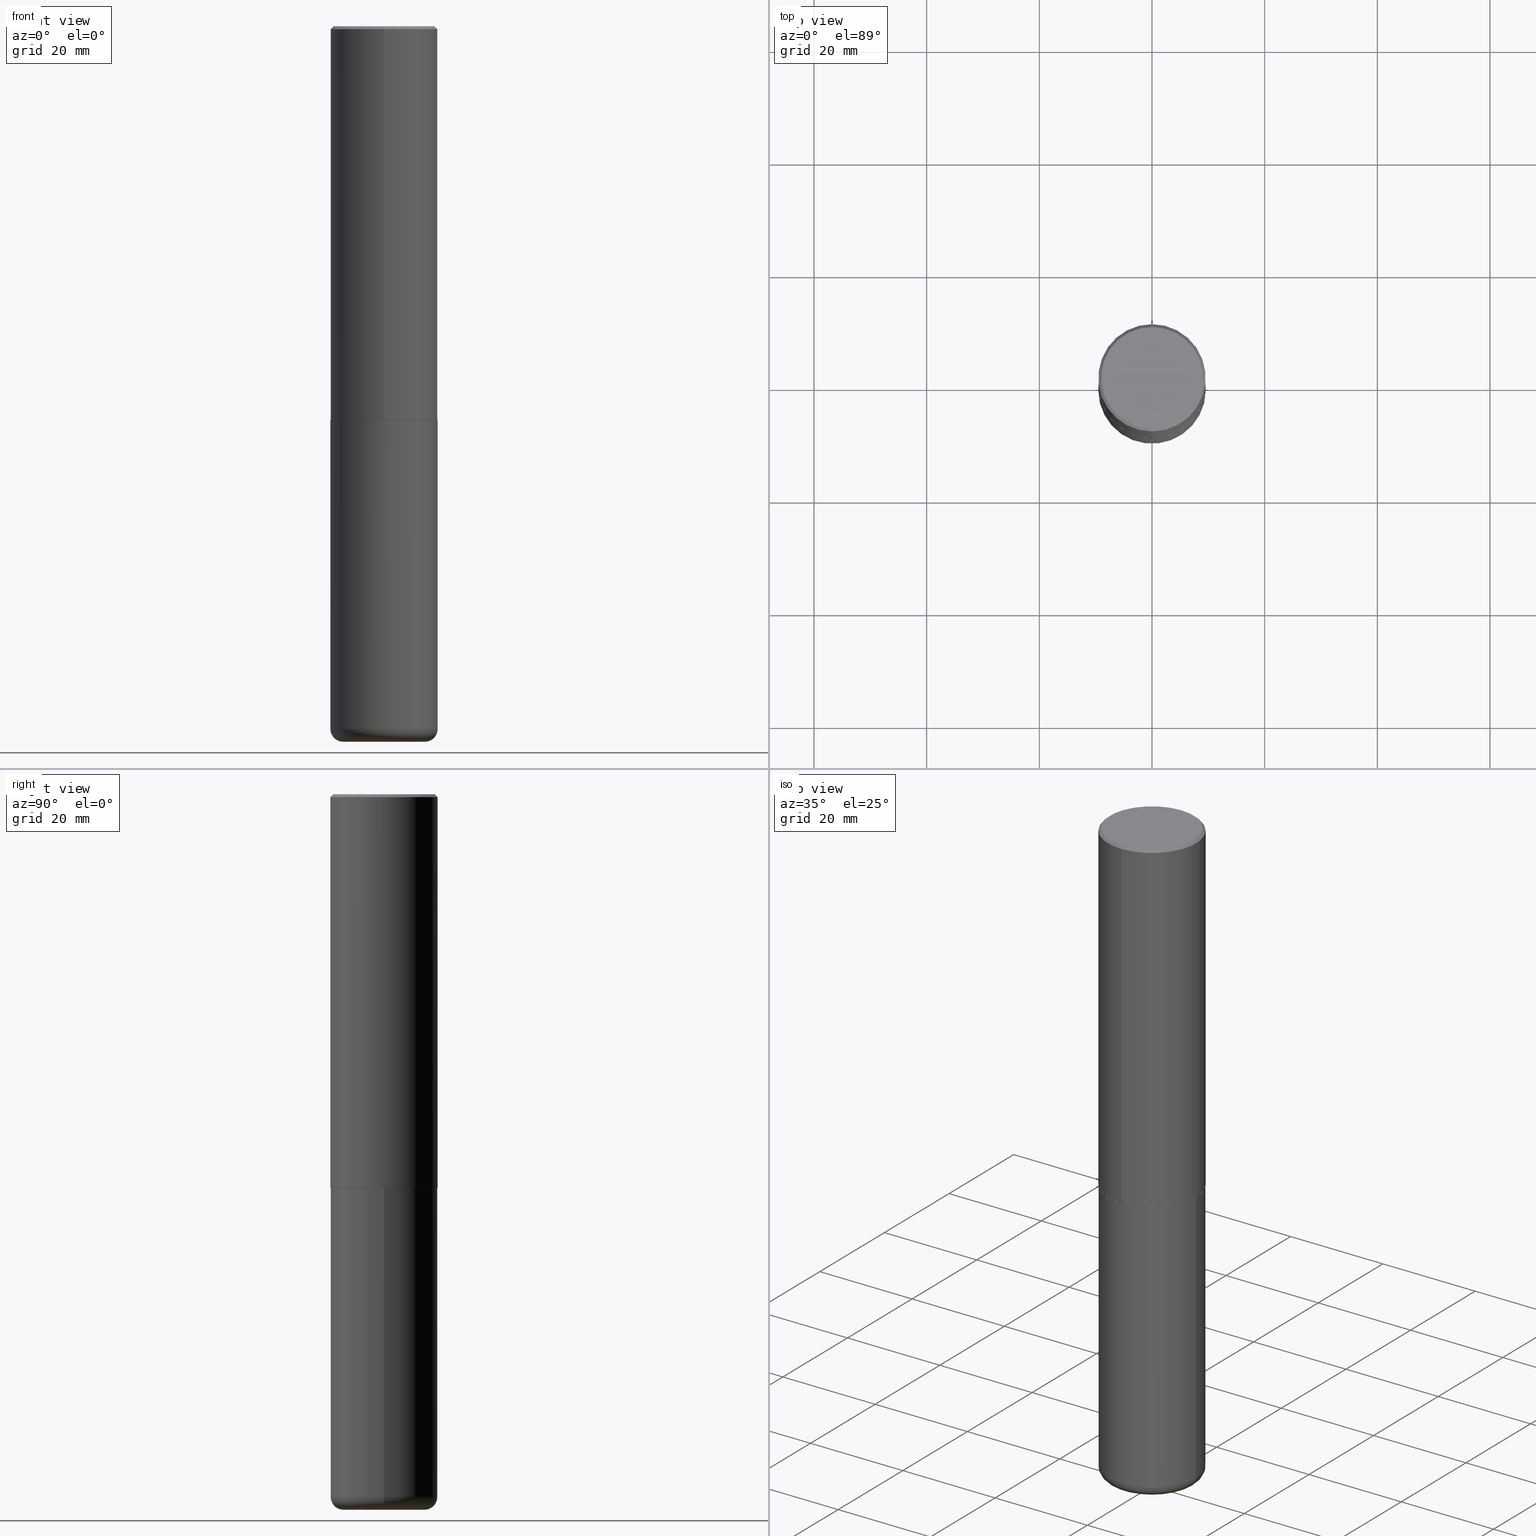
[diagram: canonical four-view strip — front | top / right | iso, engineering-drawing reading convention]
A machine part, canonical four-view strip (front | top / right | iso — engineering-drawing reading convention). The complete STEP part file that produces these views, byte-faithful:
ISO-10303-21;
HEADER;
FILE_DESCRIPTION (( 'STEP AP203' ),
    '1' );
FILE_NAME ('37664.STEP',
    '2024-03-02T07:28:20',
    ( '' ),
    ( '' ),
    'SwSTEP 2.0',
    'SolidWorks 2023',
    '' );
FILE_SCHEMA (( 'CONFIG_CONTROL_DESIGN' ));
ENDSEC;

DATA;
#1 = AXIS2_PLACEMENT_3D ( 'NONE', #21, #252, #312 ) ;
#2 = ORIENTED_EDGE ( 'NONE', *, *, #95, .T. ) ;
#3 = SHAPE_DEFINITION_REPRESENTATION ( #136, #12 ) ;
#4 = EDGE_LOOP ( 'NONE', ( #294, #179, #319, #159 ) ) ;
#5 = VERTEX_POINT ( 'NONE', #277 ) ;
#6 = AXIS2_PLACEMENT_3D ( 'NONE', #224, #56, #186 ) ;
#7 = EDGE_CURVE ( 'NONE', #117, #259, #101, .T. ) ;
#8 = CARTESIAN_POINT ( 'NONE',  ( 6.726611077289389265E-29, -9.599322688432580971E-15, -2.750000000000000000 ) ) ;
#9 = EDGE_CURVE ( 'NONE', #321, #94, #116, .T. ) ;
#10 = DIRECTION ( 'NONE',  ( -2.446040391741596606E-29, 3.490662795793665557E-15, 1.000000000000000000 ) ) ;
#11 = DIRECTION ( 'NONE',  ( 2.438088387897960049E-29, -3.491481338843145188E-15, -1.000000000000000000 ) ) ;
#12 = ADVANCED_BREP_SHAPE_REPRESENTATION ( '37664', ( #358, #214, #114 ), #303 ) ;
#13 = AXIS2_PLACEMENT_3D ( 'NONE', #115, #251, #376 ) ;
#14 = AXIS2_PLACEMENT_3D ( 'NONE', #348, #344, #406 ) ;
#15 = CARTESIAN_POINT ( 'NONE',  ( -1.141397163745304909E-45, 1.628849886601155835E-31, 4.666305460853910467E-17 ) ) ;
#16 = DIRECTION ( 'NONE',  ( -2.446040391741596606E-29, 3.490662795793665557E-15, 1.000000000000000000 ) ) ;
#17 = APPLICATION_PROTOCOL_DEFINITION ( 'international standard', 'config_control_design', 1994, #305 ) ;
#18 = CIRCLE ( 'NONE', #185, 0.08999999999999992728 ) ;
#19 = CARTESIAN_POINT ( 'NONE',  ( -0.3750000000000000555, -1.070783826866887333E-14, -2.750000000000000000 ) ) ;
#20 = DIRECTION ( 'NONE',  ( -2.445468806185136877E-29, 3.491481338843145188E-15, 1.000000000000000000 ) ) ;
#21 = CARTESIAN_POINT ( 'NONE',  ( 0.000000000000000000, 0.000000000000000000, 0.000000000000000000 ) ) ;
#22 = CARTESIAN_POINT ( 'NONE',  ( 6.726611077289389265E-29, -9.599322688432580971E-15, -2.750000000000000000 ) ) ;
#23 = AXIS2_PLACEMENT_3D ( 'NONE', #67, #380, #26 ) ;
#24 = DIRECTION ( 'NONE',  ( -6.982962677686266711E-15, -1.000000000000000000, 2.921762560068730595E-15 ) ) ;
#25 = EDGE_LOOP ( 'NONE', ( #382, #86, #359, #127 ) ) ;
#26 = DIRECTION ( 'NONE',  ( -6.982962677686265922E-15, -1.000000000000000000, 3.490662795793665557E-15 ) ) ;
#27 = ORIENTED_EDGE ( 'NONE', *, *, #271, .F. ) ;
#28 = PERSON_AND_ORGANIZATION ( #75, #167 ) ;
#29 = UNCERTAINTY_MEASURE_WITH_UNIT (LENGTH_MEASURE( 1.000000000000000082E-05 ), #314, 'distance_accuracy_value', 'NONE');
#30 = AXIS2_PLACEMENT_3D ( 'NONE', #300, #301, #204 ) ;
#31 = ORIENTED_EDGE ( 'NONE', *, *, #212, .T. ) ;
#32 = CALENDAR_DATE ( 2024, 2, 3 ) ;
#33 = ORIENTED_EDGE ( 'NONE', *, *, #9, .T. ) ;
#34 = DIRECTION ( 'NONE',  ( -2.445468806185136597E-29, 3.491481338843145583E-15, 1.000000000000000000 ) ) ;
#35 = AXIS2_PLACEMENT_3D ( 'NONE', #391, #397, #36 ) ;
#36 = DIRECTION ( 'NONE',  ( 6.982962677686265922E-15, 1.000000000000000000, -3.490662795793665557E-15 ) ) ;
#37 = DIRECTION ( 'NONE',  ( -1.000000000000000000, 6.982962677686265922E-15, -4.876176775795935793E-29 ) ) ;
#38 = DIRECTION ( 'NONE',  ( 1.000000000000000000, -6.982962677686269077E-15, 4.883557194083113462E-29 ) ) ;
#39 = CARTESIAN_POINT ( 'NONE',  ( 0.3749999999999999445, -1.976178437785219664E-14, -4.910000000000000142 ) ) ;
#40 = CARTESIAN_POINT ( 'NONE',  ( 2.664535259100376880E-15, 0.3750000000000002220, -1.308998548422625521E-15 ) ) ;
#41 = CARTESIAN_POINT ( 'NONE',  ( 4.892080783483214581E-31, -6.981325591587361238E-17, -0.02000000000000008715 ) ) ;
#42 = AXIS2_PLACEMENT_3D ( 'NONE', #241, #366, #76 ) ;
#43 = APPLICATION_PROTOCOL_DEFINITION ( 'international standard', 'config_control_design', 1994, #104 ) ;
#44 = CC_DESIGN_PERSON_AND_ORGANIZATION_ASSIGNMENT ( #118, #98, ( #385 ) ) ;
#45 = ADVANCED_FACE ( 'NONE', ( #341 ), #222, .T. ) ;
#46 = ORIENTED_EDGE ( 'NONE', *, *, #288, .T. ) ;
#47 = DIRECTION ( 'NONE',  ( 1.000000000000000000, -6.982962677686266711E-15, 0.000000000000000000 ) ) ;
#48 = CONICAL_SURFACE ( 'NONE', #14, 0.3750000000000000555, 0.7853981633974465026 ) ;
#49 = ORIENTED_EDGE ( 'NONE', *, *, #270, .F. ) ;
#50 = FACE_OUTER_BOUND ( 'NONE', #313, .T. ) ;
#51 = CARTESIAN_POINT ( 'NONE',  ( 2.548781377355487113E-15, 0.3549999999999999822, -1.192522237898212341E-15 ) ) ;
#52 = CARTESIAN_POINT ( 'NONE',  ( 6.726611077289389265E-29, -9.599322688432580971E-15, -2.750000000000000000 ) ) ;
#53 = VERTEX_POINT ( 'NONE', #51 ) ;
#54 = CALENDAR_DATE ( 2024, 2, 3 ) ;
#55 = CLOSED_SHELL ( 'NONE', ( #355, #284, #393, #392, #85, #59, #135, #246 ) ) ;
#56 = DIRECTION ( 'NONE',  ( -2.446040391741596606E-29, 3.490662795793665557E-15, 1.000000000000000000 ) ) ;
#57 = CC_DESIGN_APPROVAL ( #107, ( #385 ) ) ;
#58 = ORIENTED_EDGE ( 'NONE', *, *, #62, .F. ) ;
#59 = ADVANCED_FACE ( 'NONE', ( #275 ), #257, .T. ) ;
#60 = DIRECTION ( 'NONE',  ( -2.445468806185136597E-29, 3.491481338843145583E-15, 1.000000000000000000 ) ) ;
#61 = ORIENTED_EDGE ( 'NONE', *, *, #93, .T. ) ;
#62 = EDGE_CURVE ( 'NONE', #416, #353, #383, .T. ) ;
#63 = ORIENTED_EDGE ( 'NONE', *, *, #213, .T. ) ;
#64 = COORDINATED_UNIVERSAL_TIME_OFFSET ( 5, 0, .BEHIND. ) ;
#65 = PRODUCT ( '37664', '37664', '', ( #250 ) ) ;
#66 = DIRECTION ( 'NONE',  ( -6.982962677686266711E-15, -1.000000000000000000, 3.491481338843145583E-15 ) ) ;
#67 = CARTESIAN_POINT ( 'NONE',  ( 6.726611077289389265E-29, -9.599322688432580971E-15, -2.750000000000000000 ) ) ;
#68 = AXIS2_PLACEMENT_3D ( 'NONE', #263, #242, #171 ) ;
#69 = ORIENTED_EDGE ( 'NONE', *, *, #307, .T. ) ;
#70 = CIRCLE ( 'NONE', #402, 0.3749999999999999445 ) ;
#71 = CIRCLE ( 'NONE', #389, 0.3750000000000000555 ) ;
#72 = DIRECTION ( 'NONE',  ( 4.937700262164538576E-15, 0.7071067811865437980, -0.7071067811865512365 ) ) ;
#73 = PRODUCT_RELATED_PRODUCT_CATEGORY ( 'detail', '', ( #65 ) ) ;
#74 = CARTESIAN_POINT ( 'NONE',  ( 1.222734403092568523E-28, -1.745740669421572989E-14, -5.000000000000000000 ) ) ;
#75 = PERSON ( 'UNSPECIFIED', 'UNSPECIFIED', 'UNSPECIFIED', ('UNSPECIFIED'), ('UNSPECIFIED'), ('UNSPECIFIED') ) ;
#76 = DIRECTION ( 'NONE',  ( 1.000000000000000000, -6.982962677686269077E-15, 4.883557194083113462E-29 ) ) ;
#77 = FACE_OUTER_BOUND ( 'NONE', #413, .T. ) ;
#78 = VECTOR ( 'NONE', #239, 39.37007874015748143 ) ;
#79 = DIRECTION ( 'NONE',  ( -2.445468806185136597E-29, 3.491481338843145583E-15, 1.000000000000000000 ) ) ;
#80 = LINE ( 'NONE', #308, #266 ) ;
#81 = FACE_OUTER_BOUND ( 'NONE', #182, .T. ) ;
#82 = DIRECTION ( 'NONE',  ( -6.982962677686265922E-15, -1.000000000000000000, 3.494488891895536035E-15 ) ) ;
#83 = AXIS2_PLACEMENT_3D ( 'NONE', #52, #16, #245 ) ;
#84 = DIRECTION ( 'NONE',  ( -4.851104656540954809E-15, -0.7071067811865486830, -0.7071067811865463515 ) ) ;
#85 = ADVANCED_FACE ( 'NONE', ( #279 ), #409, .T. ) ;
#86 = ORIENTED_EDGE ( 'NONE', *, *, #296, .T. ) ;
#87 = CARTESIAN_POINT ( 'NONE',  ( -2.572686749164323547E-15, -0.3750000000000001110, -0.01999999999999877570 ) ) ;
#88 = ORIENTED_EDGE ( 'NONE', *, *, #62, .T. ) ;
#89 = CARTESIAN_POINT ( 'NONE',  ( 2.664535259100411196E-15, 0.3749999999999907296, -2.749000000000000998 ) ) ;
#90 = VERTEX_POINT ( 'NONE', #19 ) ;
#91 = VECTOR ( 'NONE', #20, 39.37007874015748143 ) ;
#92 = AXIS2_PLACEMENT_3D ( 'NONE', #369, #79, #47 ) ;
#93 = EDGE_CURVE ( 'NONE', #373, #90, #351, .T. ) ;
#94 = VERTEX_POINT ( 'NONE', #145 ) ;
#95 = EDGE_CURVE ( 'NONE', #176, #121, #137, .T. ) ;
#96 = ORIENTED_EDGE ( 'NONE', *, *, #307, .F. ) ;
#97 = ORIENTED_EDGE ( 'NONE', *, *, #155, .T. ) ;
#98 = PERSON_AND_ORGANIZATION_ROLE ( 'classification_officer' ) ;
#99 = AXIS2_PLACEMENT_3D ( 'NONE', #150, #60, #158 ) ;
#100 = FACE_OUTER_BOUND ( 'NONE', #347, .T. ) ;
#101 = CIRCLE ( 'NONE', #331, 0.3750000000000003886 ) ;
#102 = APPROVAL ( #295, 'UNSPECIFIED' ) ;
#103 = DIRECTION ( 'NONE',  ( -1.000000000000000000, 6.982962677686265922E-15, -4.876176775795935793E-29 ) ) ;
#104 = APPLICATION_CONTEXT ( 'configuration controlled 3d designs of mechanical parts and assemblies' ) ;
#105 = DIRECTION ( 'NONE',  ( -2.446040391741596606E-29, 3.490662795793665557E-15, 1.000000000000000000 ) ) ;
#106 = DIRECTION ( 'NONE',  ( 1.000000000000000000, -6.982962677686266711E-15, 0.000000000000000000 ) ) ;
#107 = APPROVAL ( #188, 'UNSPECIFIED' ) ;
#108 = FACE_OUTER_BOUND ( 'NONE', #407, .T. ) ;
#109 = CIRCLE ( 'NONE', #272, 0.08999999999999992728 ) ;
#110 = LOCAL_TIME ( 2, 28, 20.00000000000000000, #160 ) ;
#111 = COORDINATED_UNIVERSAL_TIME_OFFSET ( 5, 0, .BEHIND. ) ;
#112 = DIRECTION ( 'NONE',  ( -2.446040391741596606E-29, 3.490662795793665557E-15, 1.000000000000000000 ) ) ;
#113 = ORIENTED_EDGE ( 'NONE', *, *, #212, .F. ) ;
#114 = AXIS2_PLACEMENT_3D ( 'NONE', #148, #146, #274 ) ;
#115 = CARTESIAN_POINT ( 'NONE',  ( 6.726611077289389265E-29, -9.599322688432580971E-15, -2.750000000000000000 ) ) ;
#116 = LINE ( 'NONE', #285, #166 ) ;
#117 = VERTEX_POINT ( 'NONE', #89 ) ;
#118 = PERSON_AND_ORGANIZATION ( #75, #167 ) ;
#119 = CC_DESIGN_PERSON_AND_ORGANIZATION_ASSIGNMENT ( #322, #287, ( #343 ) ) ;
#120 = CARTESIAN_POINT ( 'NONE',  ( 2.660982545421643429E-15, 0.3739999999999903957, -2.750000000000000888 ) ) ;
#121 = VERTEX_POINT ( 'NONE', #120 ) ;
#122 = APPROVAL_ROLE ( '' ) ;
#123 = AXIS2_PLACEMENT_3D ( 'NONE', #15, #365, #334 ) ;
#124 = VERTEX_POINT ( 'NONE', #370 ) ;
#125 = DATE_AND_TIME ( #54, #209 ) ;
#126 = DESIGN_CONTEXT ( 'detailed design', #104, 'design' ) ;
#127 = ORIENTED_EDGE ( 'NONE', *, *, #200, .F. ) ;
#128 = DATE_AND_TIME ( #130, #299 ) ;
#129 = ORIENTED_EDGE ( 'NONE', *, *, #320, .T. ) ;
#130 = CALENDAR_DATE ( 2024, 2, 3 ) ;
#131 = CIRCLE ( 'NONE', #123, 0.3549999999999999822 ) ;
#132 = CARTESIAN_POINT ( 'NONE',  ( -2.504081769186608216E-15, -0.3549999999999999822, 1.285848347115290366E-15 ) ) ;
#133 = EDGE_CURVE ( 'NONE', #318, #53, #354, .T. ) ;
#134 = CARTESIAN_POINT ( 'NONE',  ( 1.200725183836902132E-28, -1.714317337371984662E-14, -4.910000000000000142 ) ) ;
#135 = ADVANCED_FACE ( 'NONE', ( #81 ), #339, .F. ) ;
#136 = PRODUCT_DEFINITION_SHAPE ( 'NONE', 'NONE',  #352 ) ;
#137 = CIRCLE ( 'NONE', #13, 0.3739999999999999991 ) ;
#138 = CARTESIAN_POINT ( 'NONE',  ( 2.618611004132350411E-15, 0.3749999999999999445, -0.02000000000000139513 ) ) ;
#139 = CARTESIAN_POINT ( 'NONE',  ( 6.725039217009124520E-29, -9.601573681818649859E-15, -2.750000000000000000 ) ) ;
#140 = ADVANCED_FACE ( 'NONE', ( #194 ), #396, .T. ) ;
#141 = APPROVAL_STATUS ( 'not_yet_approved' ) ;
#142 = AXIS2_PLACEMENT_3D ( 'NONE', #139, #11, #37 ) ;
#143 = APPROVAL_PERSON_ORGANIZATION ( #260, #102, #254 ) ;
#144 = ORIENTED_EDGE ( 'NONE', *, *, #210, .T. ) ;
#145 = CARTESIAN_POINT ( 'NONE',  ( 0.3750000000000000555, -1.222018468595100145E-14, -2.750000000000000000 ) ) ;
#146 = DIRECTION ( 'NONE',  ( 0.000000000000000000, 0.000000000000000000, 1.000000000000000000 ) ) ;
#147 = ORIENTED_EDGE ( 'NONE', *, *, #168, .F. ) ;
#148 = CARTESIAN_POINT ( 'NONE',  ( 0.000000000000000000, 0.000000000000000000, 0.000000000000000000 ) ) ;
#149 = AXIS2_PLACEMENT_3D ( 'NONE', #74, #173, #103 ) ;
#150 = CARTESIAN_POINT ( 'NONE',  ( 0.000000000000000000, 0.000000000000000000, 0.000000000000000000 ) ) ;
#151 = APPROVAL_PERSON_ORGANIZATION ( #247, #361, #403 ) ;
#152 = ORIENTED_EDGE ( 'NONE', *, *, #168, .T. ) ;
#153 = COORDINATED_UNIVERSAL_TIME_OFFSET ( 5, 0, .BEHIND. ) ;
#154 = ADVANCED_FACE ( 'NONE', ( #196 ), #227, .T. ) ;
#155 = EDGE_CURVE ( 'NONE', #117, #353, #205, .T. ) ;
#156 = ORIENTED_EDGE ( 'NONE', *, *, #345, .T. ) ;
#157 = ORIENTED_EDGE ( 'NONE', *, *, #405, .F. ) ;
#158 = DIRECTION ( 'NONE',  ( 1.000000000000000000, -6.982962677686266711E-15, 4.876176775795935793E-29 ) ) ;
#159 = ORIENTED_EDGE ( 'NONE', *, *, #271, .T. ) ;
#160 = COORDINATED_UNIVERSAL_TIME_OFFSET ( 5, 0, .BEHIND. ) ;
#161 = CIRCLE ( 'NONE', #310, 0.3749999999999999445 ) ;
#162 = EDGE_CURVE ( 'NONE', #318, #416, #80, .T. ) ;
#163 = ORIENTED_EDGE ( 'NONE', *, *, #320, .F. ) ;
#164 = EDGE_LOOP ( 'NONE', ( #129, #63 ) ) ;
#165 = CARTESIAN_POINT ( 'NONE',  ( 2.618611004132350411E-15, 0.3749999999999999445, -0.02000000000000139513 ) ) ;
#166 = VECTOR ( 'NONE', #415, 39.37007874015748143 ) ;
#167 = ORGANIZATION ( 'UNSPECIFIED', 'UNSPECIFIED', '' ) ;
#168 = EDGE_CURVE ( 'NONE', #121, #117, #180, .T. ) ;
#169 = DIRECTION ( 'NONE',  ( -6.982962677686266711E-15, -1.000000000000000000, 3.490662795793665951E-15 ) ) ;
#170 = DIRECTION ( 'NONE',  ( 7.105427357601001859E-15, 1.000000000000000000, -3.491481338843145583E-15 ) ) ;
#171 = DIRECTION ( 'NONE',  ( -6.982962677686265922E-15, -1.000000000000000000, 2.913971193241877611E-15 ) ) ;
#172 = CONICAL_SURFACE ( 'NONE', #337, 0.3750000000000000555, 0.7853981633974465026 ) ;
#173 = DIRECTION ( 'NONE',  ( 2.438088387897960049E-29, -3.491481338843145188E-15, -1.000000000000000000 ) ) ;
#174 = FACE_OUTER_BOUND ( 'NONE', #4, .T. ) ;
#175 = CARTESIAN_POINT ( 'NONE',  ( 1.200725183836902132E-28, -1.714317337371984662E-14, -4.910000000000000142 ) ) ;
#176 = VERTEX_POINT ( 'NONE', #346 ) ;
#177 = CONICAL_SURFACE ( 'NONE', #83, 0.3739999999999999991, 0.7853981633977213939 ) ;
#178 = ADVANCED_FACE ( 'NONE', ( #278 ), #375, .T. ) ;
#179 = ORIENTED_EDGE ( 'NONE', *, *, #345, .F. ) ;
#180 = LINE ( 'NONE', #400, #401 ) ;
#181 = DIRECTION ( 'NONE',  ( -2.446040391741596606E-29, 3.490662795793665557E-15, 1.000000000000000000 ) ) ;
#182 = EDGE_LOOP ( 'NONE', ( #192, #113 ) ) ;
#183 = CC_DESIGN_PERSON_AND_ORGANIZATION_ASSIGNMENT ( #28, #388, ( #343 ) ) ;
#184 = COORDINATED_UNIVERSAL_TIME_OFFSET ( 5, 0, .BEHIND. ) ;
#185 = AXIS2_PLACEMENT_3D ( 'NONE', #190, #66, #323 ) ;
#186 = DIRECTION ( 'NONE',  ( -6.982962677686265922E-15, -1.000000000000000000, 3.490662795793665557E-15 ) ) ;
#187 = ORIENTED_EDGE ( 'NONE', *, *, #328, .T. ) ;
#188 = APPROVAL_STATUS ( 'not_yet_approved' ) ;
#189 = ORIENTED_EDGE ( 'NONE', *, *, #235, .T. ) ;
#190 = CARTESIAN_POINT ( 'NONE',  ( 0.2850000000000000311, -1.913331773686043011E-14, -4.910000000000000142 ) ) ;
#191 = DIRECTION ( 'NONE',  ( -2.445468806185136597E-29, 3.491481338843145583E-15, 1.000000000000000000 ) ) ;
#192 = ORIENTED_EDGE ( 'NONE', *, *, #95, .F. ) ;
#193 = CIRCLE ( 'NONE', #30, 0.2850000000000000311 ) ;
#194 = FACE_OUTER_BOUND ( 'NONE', #231, .T. ) ;
#195 = ORIENTED_EDGE ( 'NONE', *, *, #162, .T. ) ;
#196 = FACE_OUTER_BOUND ( 'NONE', #25, .T. ) ;
#197 = DIRECTION ( 'NONE',  ( -2.445468806185136597E-29, 3.491481338843145583E-15, 1.000000000000000000 ) ) ;
#198 = DIMENSIONAL_EXPONENTS ( 1.000000000000000000, 0.000000000000000000, 0.000000000000000000, 0.000000000000000000, 0.000000000000000000, 0.000000000000000000, 0.000000000000000000 ) ;
#199 = CC_DESIGN_PERSON_AND_ORGANIZATION_ASSIGNMENT ( #269, #399, ( #65 ) ) ;
#200 = EDGE_CURVE ( 'NONE', #124, #321, #18, .T. ) ;
#201 = PLANE ( 'NONE',  #149 ) ;
#202 = AXIS2_PLACEMENT_3D ( 'NONE', #349, #215, #211 ) ;
#203 = APPROVAL_PERSON_ORGANIZATION ( #350, #107, #122 ) ;
#204 = DIRECTION ( 'NONE',  ( 1.000000000000000000, -6.982962677686266711E-15, 0.000000000000000000 ) ) ;
#205 = LINE ( 'NONE', #40, #281 ) ;
#206 = CARTESIAN_POINT ( 'NONE',  ( 6.725039217009124520E-29, -9.601573681818649859E-15, -2.750000000000000000 ) ) ;
#207 = DIRECTION ( 'NONE',  ( -2.446040391741596606E-29, 3.490662795793665557E-15, 1.000000000000000000 ) ) ;
#208 = CIRCLE ( 'NONE', #68, 0.3750000000000003886 ) ;
#209 = LOCAL_TIME ( 2, 28, 20.00000000000000000, #184 ) ;
#210 = EDGE_CURVE ( 'NONE', #259, #416, #418, .T. ) ;
#211 = DIRECTION ( 'NONE',  ( -6.982962677686266711E-15, -1.000000000000000000, 3.490662795793665951E-15 ) ) ;
#212 = EDGE_CURVE ( 'NONE', #121, #176, #216, .T. ) ;
#213 = EDGE_CURVE ( 'NONE', #90, #94, #336, .T. ) ;
#214 = MANIFOLD_SOLID_BREP ( 'Body-Move/Copy2[2]', #55 ) ;
#215 = DIRECTION ( 'NONE',  ( -2.446040391741596606E-29, 3.490662795793665557E-15, 1.000000000000000000 ) ) ;
#216 = CIRCLE ( 'NONE', #316, 0.3739999999999999991 ) ;
#217 = DIRECTION ( 'NONE',  ( 2.446040391741596606E-29, -3.490662795793665557E-15, -1.000000000000000000 ) ) ;
#218 = CC_DESIGN_APPROVAL ( #361, ( #352 ) ) ;
#219 = DIRECTION ( 'NONE',  ( 5.024295867789434219E-15, 0.7071067811867430830, 0.7071067811863519514 ) ) ;
#220 = ORIENTED_EDGE ( 'NONE', *, *, #133, .F. ) ;
#221 = CARTESIAN_POINT ( 'NONE',  ( -0.3749999999999999445, -1.447863811461947092E-14, -4.910000000000000142 ) ) ;
#222 = CYLINDRICAL_SURFACE ( 'NONE', #1, 0.3749999999999999445 ) ;
#223 = DATE_AND_TIME ( #371, #273 ) ;
#224 = CARTESIAN_POINT ( 'NONE',  ( -1.141397163745304909E-45, 1.628849886601155835E-31, 4.666305460853910467E-17 ) ) ;
#225 = ADVANCED_FACE ( 'NONE', ( #243 ), #201, .T. ) ;
#226 = ORIENTED_EDGE ( 'NONE', *, *, #9, .F. ) ;
#227 = TOROIDAL_SURFACE ( 'NONE', #42, 0.2850000000000000311, 0.08999999999999989952 ) ;
#228 = CC_DESIGN_SECURITY_CLASSIFICATION ( #385, ( #343 ) ) ;
#229 = ORIENTED_EDGE ( 'NONE', *, *, #328, .F. ) ;
#230 = CALENDAR_DATE ( 2024, 2, 3 ) ;
#231 = EDGE_LOOP ( 'NONE', ( #258, #189, #253, #157 ) ) ;
#232 = APPROVAL_DATE_TIME ( #223, #361 ) ;
#233 = DIRECTION ( 'NONE',  ( -2.446040391741596606E-29, 3.490662795793665557E-15, 1.000000000000000000 ) ) ;
#234 = ORIENTED_EDGE ( 'NONE', *, *, #7, .T. ) ;
#235 = EDGE_CURVE ( 'NONE', #5, #124, #193, .T. ) ;
#236 = CARTESIAN_POINT ( 'NONE',  ( 0.000000000000000000, 0.000000000000000000, 0.000000000000000000 ) ) ;
#237 = LINE ( 'NONE', #265, #78 ) ;
#238 = AXIS2_PLACEMENT_3D ( 'NONE', #22, #283, #24 ) ;
#239 = DIRECTION ( 'NONE',  ( -4.937700262165896205E-15, -0.7071067811867381980, 0.7071067811863568364 ) ) ;
#240 = ADVANCED_FACE ( 'NONE', ( #333 ), #267, .F. ) ;
#241 = CARTESIAN_POINT ( 'NONE',  ( 1.200725183836902132E-28, -1.714317337371984662E-14, -4.910000000000000142 ) ) ;
#242 = DIRECTION ( 'NONE',  ( -2.446040391741596606E-29, 3.490662795793665557E-15, 1.000000000000000000 ) ) ;
#243 = FACE_OUTER_BOUND ( 'NONE', #315, .T. ) ;
#244 = AXIS2_PLACEMENT_3D ( 'NONE', #372, #181, #82 ) ;
#245 = DIRECTION ( 'NONE',  ( -6.982962677686266711E-15, -1.000000000000000000, 2.921762560068730595E-15 ) ) ;
#246 = ADVANCED_FACE ( 'NONE', ( #100 ), #330, .F. ) ;
#247 = PERSON_AND_ORGANIZATION ( #75, #167 ) ;
#248 = DIRECTION ( 'NONE',  ( -6.982962677686265922E-15, -1.000000000000000000, 2.913971193241877611E-15 ) ) ;
#249 = EDGE_LOOP ( 'NONE', ( #46, #61, #163, #226 ) ) ;
#250 = MECHANICAL_CONTEXT ( 'NONE', #305, 'mechanical' ) ;
#251 = DIRECTION ( 'NONE',  ( -2.446040391741596606E-29, 3.490662795793665557E-15, 1.000000000000000000 ) ) ;
#252 = DIRECTION ( 'NONE',  ( -2.445468806185136597E-29, 3.491481338843145583E-15, 1.000000000000000000 ) ) ;
#253 = ORIENTED_EDGE ( 'NONE', *, *, #200, .T. ) ;
#254 = APPROVAL_ROLE ( '' ) ;
#255 = ORIENTED_EDGE ( 'NONE', *, *, #235, .F. ) ;
#256 = PERSON_AND_ORGANIZATION_ROLE ( 'creator' ) ;
#257 = CONICAL_SURFACE ( 'NONE', #238, 0.3739999999999999991, 0.7853981633977213939 ) ;
#258 = ORIENTED_EDGE ( 'NONE', *, *, #296, .F. ) ;
#259 = VERTEX_POINT ( 'NONE', #368 ) ;
#260 = PERSON_AND_ORGANIZATION ( #75, #167 ) ;
#261 = CC_DESIGN_PERSON_AND_ORGANIZATION_ASSIGNMENT ( #293, #256, ( #352 ) ) ;
#262 = AXIS2_PLACEMENT_3D ( 'NONE', #206, #304, #394 ) ;
#263 = CARTESIAN_POINT ( 'NONE',  ( 6.724165036897648492E-29, -9.595832025636787455E-15, -2.749000000000000110 ) ) ;
#264 = DIRECTION ( 'NONE',  ( 1.000000000000000000, -6.982962677686269077E-15, 0.000000000000000000 ) ) ;
#265 = CARTESIAN_POINT ( 'NONE',  ( -2.611628041454596160E-15, -0.3740000000000096581, -2.749999999999998668 ) ) ;
#266 = VECTOR ( 'NONE', #84, 39.37007874015748143 ) ;
#267 = PLANE ( 'NONE',  #142 ) ;
#268 = CYLINDRICAL_SURFACE ( 'NONE', #298, 0.3750000000000002220 ) ;
#269 = PERSON_AND_ORGANIZATION ( #75, #167 ) ;
#270 = EDGE_CURVE ( 'NONE', #53, #353, #335, .T. ) ;
#271 = EDGE_CURVE ( 'NONE', #353, #416, #71, .T. ) ;
#272 = AXIS2_PLACEMENT_3D ( 'NONE', #297, #170, #329 ) ;
#273 = LOCAL_TIME ( 2, 28, 20.00000000000000000, #111 ) ;
#274 = DIRECTION ( 'NONE',  ( 1.000000000000000000, 0.000000000000000000, 0.000000000000000000 ) ) ;
#275 = FACE_OUTER_BOUND ( 'NONE', #378, .T. ) ;
#276 = DIRECTION ( 'NONE',  ( 1.000000000000000000, -6.982962677686269077E-15, 0.000000000000000000 ) ) ;
#277 = CARTESIAN_POINT ( 'NONE',  ( -0.2850000000000000311, -1.495549900595945556E-14, -5.000000000000000000 ) ) ;
#278 = FACE_OUTER_BOUND ( 'NONE', #356, .T. ) ;
#279 = FACE_OUTER_BOUND ( 'NONE', #326, .T. ) ;
#280 = CC_DESIGN_DATE_AND_TIME_ASSIGNMENT ( #417, #387, ( #385 ) ) ;
#281 = VECTOR ( 'NONE', #207, 39.37007874015748143 ) ;
#282 =( NAMED_UNIT ( * ) SI_UNIT ( $, .STERADIAN. ) SOLID_ANGLE_UNIT ( ) );
#283 = DIRECTION ( 'NONE',  ( -2.446040391741596606E-29, 3.490662795793665557E-15, 1.000000000000000000 ) ) ;
#284 = ADVANCED_FACE ( 'NONE', ( #77 ), #268, .T. ) ;
#285 = CARTESIAN_POINT ( 'NONE',  ( 0.3749999999999999445, -2.618611004132349622E-15, 1.828566290923475642E-29 ) ) ;
#286 = ORIENTED_EDGE ( 'NONE', *, *, #7, .F. ) ;
#287 = PERSON_AND_ORGANIZATION_ROLE ( 'creator' ) ;
#288 = EDGE_CURVE ( 'NONE', #321, #373, #161, .T. ) ;
#289 = ORIENTED_EDGE ( 'NONE', *, *, #210, .F. ) ;
#290 = CLOSED_SHELL ( 'NONE', ( #45, #154, #240, #178, #140, #225 ) ) ;
#291 = CARTESIAN_POINT ( 'NONE',  ( -2.618611004132351594E-15, -0.3750000000000002220, 1.308998548422625521E-15 ) ) ;
#292 = ORIENTED_EDGE ( 'NONE', *, *, #213, .F. ) ;
#293 = PERSON_AND_ORGANIZATION ( #75, #167 ) ;
#294 = ORIENTED_EDGE ( 'NONE', *, *, #162, .F. ) ;
#295 = APPROVAL_STATUS ( 'not_yet_approved' ) ;
#296 = EDGE_CURVE ( 'NONE', #5, #373, #109, .T. ) ;
#297 = CARTESIAN_POINT ( 'NONE',  ( -0.2850000000000000311, -1.511812657680356008E-14, -4.910000000000000142 ) ) ;
#298 = AXIS2_PLACEMENT_3D ( 'NONE', #236, #10, #169 ) ;
#299 = LOCAL_TIME ( 2, 28, 20.00000000000000000, #64 ) ;
#300 = CARTESIAN_POINT ( 'NONE',  ( 1.222734403092568523E-28, -1.745740669421572989E-14, -5.000000000000000000 ) ) ;
#301 = DIRECTION ( 'NONE',  ( -2.445468806185136597E-29, 3.491481338843145583E-15, 1.000000000000000000 ) ) ;
#302 = CIRCLE ( 'NONE', #262, 0.3750000000000000555 ) ;
#303 =( GEOMETRIC_REPRESENTATION_CONTEXT ( 3 ) GLOBAL_UNCERTAINTY_ASSIGNED_CONTEXT ( ( #29 ) ) GLOBAL_UNIT_ASSIGNED_CONTEXT ( ( #314, #411, #282 ) ) REPRESENTATION_CONTEXT ( 'NONE', 'WORKASPACE' ) );
#304 = DIRECTION ( 'NONE',  ( -2.445468806185136597E-29, 3.491481338843145583E-15, 1.000000000000000000 ) ) ;
#305 = APPLICATION_CONTEXT ( 'configuration controlled 3d designs of mechanical parts and assemblies' ) ;
#306 = DIRECTION ( 'NONE',  ( -2.445468806185136597E-29, 3.491481338843145583E-15, 1.000000000000000000 ) ) ;
#307 = EDGE_CURVE ( 'NONE', #259, #117, #208, .T. ) ;
#308 = CARTESIAN_POINT ( 'NONE',  ( -2.572686749164323547E-15, -0.3750000000000001110, -0.01999999999999877570 ) ) ;
#309 = CARTESIAN_POINT ( 'NONE',  ( 6.724165036897648492E-29, -9.595832025636787455E-15, -2.749000000000000110 ) ) ;
#310 = AXIS2_PLACEMENT_3D ( 'NONE', #134, #197, #264 ) ;
#311 = LENGTH_MEASURE_WITH_UNIT ( LENGTH_MEASURE( 0.02539999999999999897 ), #338 );
#312 = DIRECTION ( 'NONE',  ( 1.000000000000000000, -6.982962677686266711E-15, 4.876176775795935793E-29 ) ) ;
#313 = EDGE_LOOP ( 'NONE', ( #220, #195, #88, #49 ) ) ;
#314 =( CONVERSION_BASED_UNIT ( 'INCH', #311 ) LENGTH_UNIT ( ) NAMED_UNIT ( #198 ) );
#315 = EDGE_LOOP ( 'NONE', ( #404, #255 ) ) ;
#316 = AXIS2_PLACEMENT_3D ( 'NONE', #8, #395, #363 ) ;
#317 = SECURITY_CLASSIFICATION_LEVEL ( 'unclassified' ) ;
#318 = VERTEX_POINT ( 'NONE', #132 ) ;
#319 = ORIENTED_EDGE ( 'NONE', *, *, #270, .T. ) ;
#320 = EDGE_CURVE ( 'NONE', #94, #90, #302, .T. ) ;
#321 = VERTEX_POINT ( 'NONE', #39 ) ;
#322 = PERSON_AND_ORGANIZATION ( #75, #167 ) ;
#323 = DIRECTION ( 'NONE',  ( 1.000000000000000000, -6.982962677686273810E-15, 0.000000000000000000 ) ) ;
#324 = ORIENTED_EDGE ( 'NONE', *, *, #155, .F. ) ;
#325 = AXIS2_PLACEMENT_3D ( 'NONE', #357, #191, #38 ) ;
#326 = EDGE_LOOP ( 'NONE', ( #324, #234, #144, #27 ) ) ;
#327 = DATE_AND_TIME ( #32, #410 ) ;
#328 = EDGE_CURVE ( 'NONE', #176, #259, #237, .T. ) ;
#329 = DIRECTION ( 'NONE',  ( -1.000000000000000000, 7.105427357600996337E-15, 0.000000000000000000 ) ) ;
#330 = PLANE ( 'NONE',  #35 ) ;
#331 = AXIS2_PLACEMENT_3D ( 'NONE', #309, #112, #248 ) ;
#332 = CC_DESIGN_DATE_AND_TIME_ASSIGNMENT ( #128, #414, ( #352 ) ) ;
#333 = FACE_OUTER_BOUND ( 'NONE', #164, .T. ) ;
#334 = DIRECTION ( 'NONE',  ( -6.982962677686265922E-15, -1.000000000000000000, 3.490662795793665557E-15 ) ) ;
#335 = LINE ( 'NONE', #165, #342 ) ;
#336 = CIRCLE ( 'NONE', #374, 0.3750000000000000555 ) ;
#337 = AXIS2_PLACEMENT_3D ( 'NONE', #408, #217, #340 ) ;
#338 =( LENGTH_UNIT ( ) NAMED_UNIT ( * ) SI_UNIT ( $, .METRE. ) );
#339 = PLANE ( 'NONE',  #23 ) ;
#340 = DIRECTION ( 'NONE',  ( 6.982962677686265922E-15, 1.000000000000000000, -3.494488891895536035E-15 ) ) ;
#341 = FACE_OUTER_BOUND ( 'NONE', #249, .T. ) ;
#342 = VECTOR ( 'NONE', #72, 39.37007874015748143 ) ;
#343 = PRODUCT_DEFINITION_FORMATION_WITH_SPECIFIED_SOURCE ( 'ANY', '', #65, .NOT_KNOWN. ) ;
#344 = DIRECTION ( 'NONE',  ( 2.446040391741596606E-29, -3.490662795793665557E-15, -1.000000000000000000 ) ) ;
#345 = EDGE_CURVE ( 'NONE', #53, #318, #131, .T. ) ;
#346 = CARTESIAN_POINT ( 'NONE',  ( -2.611628041454596160E-15, -0.3740000000000096581, -2.749999999999998668 ) ) ;
#347 = EDGE_LOOP ( 'NONE', ( #156, #360 ) ) ;
#348 = CARTESIAN_POINT ( 'NONE',  ( 4.892080783483214581E-31, -6.981325591587361238E-17, -0.02000000000000008715 ) ) ;
#349 = CARTESIAN_POINT ( 'NONE',  ( 0.000000000000000000, 0.000000000000000000, 0.000000000000000000 ) ) ;
#350 = PERSON_AND_ORGANIZATION ( #75, #167 ) ;
#351 = LINE ( 'NONE', #412, #91 ) ;
#352 = PRODUCT_DEFINITION ( 'UNKNOWN', '', #343, #126 ) ;
#353 = VERTEX_POINT ( 'NONE', #138 ) ;
#354 = CIRCLE ( 'NONE', #6, 0.3549999999999999822 ) ;
#355 = ADVANCED_FACE ( 'NONE', ( #108 ), #177, .T. ) ;
#356 = EDGE_LOOP ( 'NONE', ( #386, #377, #33, #292 ) ) ;
#357 = CARTESIAN_POINT ( 'NONE',  ( 1.200725183836902132E-28, -1.714317337371984662E-14, -4.910000000000000142 ) ) ;
#358 = MANIFOLD_SOLID_BREP ( 'Body-Move/Copy2[1]', #290 ) ;
#359 = ORIENTED_EDGE ( 'NONE', *, *, #288, .F. ) ;
#360 = ORIENTED_EDGE ( 'NONE', *, *, #133, .T. ) ;
#361 = APPROVAL ( #141, 'UNSPECIFIED' ) ;
#362 = EDGE_CURVE ( 'NONE', #124, #5, #364, .T. ) ;
#363 = DIRECTION ( 'NONE',  ( -6.982962677686266711E-15, -1.000000000000000000, 2.921762560068730595E-15 ) ) ;
#364 = CIRCLE ( 'NONE', #92, 0.2850000000000000311 ) ;
#365 = DIRECTION ( 'NONE',  ( -2.446040391741596606E-29, 3.490662795793665557E-15, 1.000000000000000000 ) ) ;
#366 = DIRECTION ( 'NONE',  ( -2.445468806185136597E-29, 3.491481338843145583E-15, 1.000000000000000000 ) ) ;
#367 = CARTESIAN_POINT ( 'NONE',  ( 6.725039217009124520E-29, -9.601573681818649859E-15, -2.750000000000000000 ) ) ;
#368 = CARTESIAN_POINT ( 'NONE',  ( -2.618611004132284935E-15, -0.3750000000000099920, -2.748999999999999222 ) ) ;
#369 = CARTESIAN_POINT ( 'NONE',  ( 1.222734403092568523E-28, -1.745740669421572989E-14, -5.000000000000000000 ) ) ;
#370 = CARTESIAN_POINT ( 'NONE',  ( 0.2850000000000000311, -1.944755105735631653E-14, -5.000000000000000000 ) ) ;
#371 = CALENDAR_DATE ( 2024, 2, 3 ) ;
#372 = CARTESIAN_POINT ( 'NONE',  ( 4.892080783483214581E-31, -6.981325591587361238E-17, -0.02000000000000008715 ) ) ;
#373 = VERTEX_POINT ( 'NONE', #221 ) ;
#374 = AXIS2_PLACEMENT_3D ( 'NONE', #367, #34, #106 ) ;
#375 = CYLINDRICAL_SURFACE ( 'NONE', #99, 0.3749999999999999445 ) ;
#376 = DIRECTION ( 'NONE',  ( -6.982962677686266711E-15, -1.000000000000000000, 2.921762560068730595E-15 ) ) ;
#377 = ORIENTED_EDGE ( 'NONE', *, *, #405, .T. ) ;
#378 = EDGE_LOOP ( 'NONE', ( #147, #31, #187, #286 ) ) ;
#379 = APPROVAL_DATE_TIME ( #327, #102 ) ;
#380 = DIRECTION ( 'NONE',  ( -2.446040391741596045E-29, 3.490662795793665557E-15, 1.000000000000000000 ) ) ;
#381 = VECTOR ( 'NONE', #233, 39.37007874015748143 ) ;
#382 = ORIENTED_EDGE ( 'NONE', *, *, #362, .T. ) ;
#383 = CIRCLE ( 'NONE', #244, 0.3750000000000000555 ) ;
#384 = APPROVAL_DATE_TIME ( #125, #107 ) ;
#385 = SECURITY_CLASSIFICATION ( '', '', #317 ) ;
#386 = ORIENTED_EDGE ( 'NONE', *, *, #93, .F. ) ;
#387 = DATE_TIME_ROLE ( 'classification_date' ) ;
#388 = PERSON_AND_ORGANIZATION_ROLE ( 'design_supplier' ) ;
#389 = AXIS2_PLACEMENT_3D ( 'NONE', #41, #105, #398 ) ;
#390 = CC_DESIGN_APPROVAL ( #102, ( #343 ) ) ;
#391 = CARTESIAN_POINT ( 'NONE',  ( 2.478951750578624209E-15, 0.3549999999999999822, -1.215853765202481601E-15 ) ) ;
#392 = ADVANCED_FACE ( 'NONE', ( #174 ), #172, .T. ) ;
#393 = ADVANCED_FACE ( 'NONE', ( #50 ), #48, .T. ) ;
#394 = DIRECTION ( 'NONE',  ( 1.000000000000000000, -6.982962677686266711E-15, 0.000000000000000000 ) ) ;
#395 = DIRECTION ( 'NONE',  ( -2.446040391741596606E-29, 3.490662795793665557E-15, 1.000000000000000000 ) ) ;
#396 = TOROIDAL_SURFACE ( 'NONE', #325, 0.2850000000000000311, 0.08999999999999989952 ) ;
#397 = DIRECTION ( 'NONE',  ( 2.446040391741596045E-29, -3.490662795793665557E-15, -1.000000000000000000 ) ) ;
#398 = DIRECTION ( 'NONE',  ( -6.982962677686265922E-15, -1.000000000000000000, 3.494488891895536035E-15 ) ) ;
#399 = PERSON_AND_ORGANIZATION_ROLE ( 'design_owner' ) ;
#400 = CARTESIAN_POINT ( 'NONE',  ( 2.657429831742841742E-15, 0.3739999999999903957, -2.750000000000000888 ) ) ;
#401 = VECTOR ( 'NONE', #219, 39.37007874015748143 ) ;
#402 = AXIS2_PLACEMENT_3D ( 'NONE', #175, #306, #276 ) ;
#403 = APPROVAL_ROLE ( '' ) ;
#404 = ORIENTED_EDGE ( 'NONE', *, *, #362, .F. ) ;
#405 = EDGE_CURVE ( 'NONE', #373, #321, #70, .T. ) ;
#406 = DIRECTION ( 'NONE',  ( 6.982962677686265922E-15, 1.000000000000000000, -3.494488891895536035E-15 ) ) ;
#407 = EDGE_LOOP ( 'NONE', ( #2, #152, #96, #229 ) ) ;
#408 = CARTESIAN_POINT ( 'NONE',  ( 4.892080783483214581E-31, -6.981325591587361238E-17, -0.02000000000000008715 ) ) ;
#409 = CYLINDRICAL_SURFACE ( 'NONE', #202, 0.3750000000000002220 ) ;
#410 = LOCAL_TIME ( 2, 28, 20.00000000000000000, #153 ) ;
#411 =( NAMED_UNIT ( * ) PLANE_ANGLE_UNIT ( ) SI_UNIT ( $, .RADIAN. ) );
#412 = CARTESIAN_POINT ( 'NONE',  ( -0.3749999999999999445, 2.664535259100375303E-15, -1.844600658845589318E-29 ) ) ;
#413 = EDGE_LOOP ( 'NONE', ( #69, #97, #58, #289 ) ) ;
#414 = DATE_TIME_ROLE ( 'creation_date' ) ;
#415 = DIRECTION ( 'NONE',  ( -2.445468806185136877E-29, 3.491481338843145188E-15, 1.000000000000000000 ) ) ;
#416 = VERTEX_POINT ( 'NONE', #87 ) ;
#417 = DATE_AND_TIME ( #230, #110 ) ;
#418 = LINE ( 'NONE', #291, #381 ) ;
ENDSEC;
END-ISO-10303-21;
